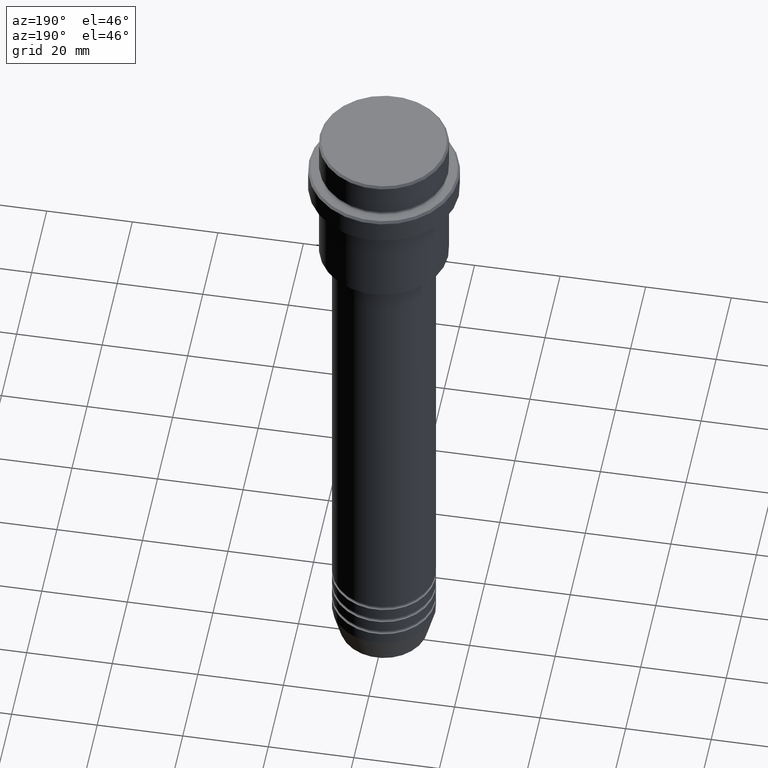
[diagram: clean part render]
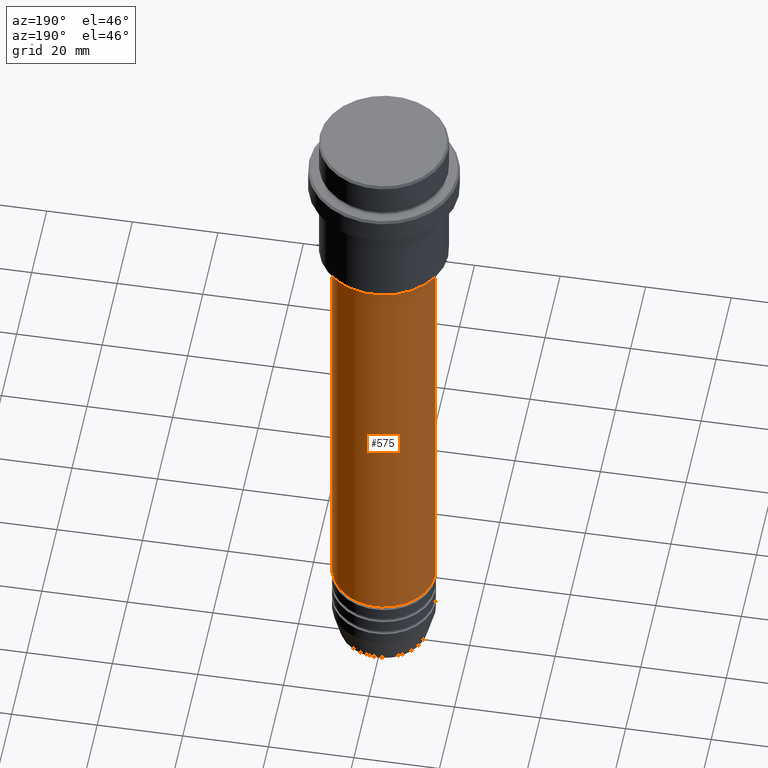
[diagram: same view with one face highlighted and labeled with its STEP entity id]
A machine part, auxiliary view. The second image highlights one B-rep face of the part: STEP entity #575.
In plain terms, the highlighted cylindrical surface (partial cylindrical patch) has radius 12 mm, axis along (-0, -0, 1).
Its self-contained STEP definition (entity closure, byte-faithful):
#4 = VERTEX_POINT ( 'NONE', #1037 ) ;
#33 = DIRECTION ( 'NONE',  ( -0.000000000000000000, -0.000000000000000000, 1.000000000000000000 ) ) ;
#55 = CARTESIAN_POINT ( 'NONE',  ( 0.000000000000000000, 0.000000000000000000, 0.000000000000000000 ) ) ;
#130 = AXIS2_PLACEMENT_3D ( 'NONE', #326, #419, #635 ) ;
#169 = FACE_OUTER_BOUND ( 'NONE', #1409, .T. ) ;
#295 = VERTEX_POINT ( 'NONE', #1391 ) ;
#326 = CARTESIAN_POINT ( 'NONE',  ( 0.000000000000000000, 0.000000000000000000, -141.9999999999999147 ) ) ;
#368 = CARTESIAN_POINT ( 'NONE',  ( 12.00000000000000000, 0.000000000000000000, 0.000000000000000000 ) ) ;
#392 = DIRECTION ( 'NONE',  ( -0.000000000000000000, -0.000000000000000000, 1.000000000000000000 ) ) ;
#412 = ORIENTED_EDGE ( 'NONE', *, *, #1329, .F. ) ;
#419 = DIRECTION ( 'NONE',  ( -0.000000000000000000, -0.000000000000000000, 1.000000000000000000 ) ) ;
#493 = LINE ( 'NONE', #368, #1093 ) ;
#540 = CIRCLE ( 'NONE', #1405, 11.99999999999999822 ) ;
#547 = EDGE_CURVE ( 'NONE', #295, #4, #540, .T. ) ;
#548 = LINE ( 'NONE', #1312, #872 ) ;
#575 = ADVANCED_FACE ( 'NONE', ( #169 ), #1052, .T. ) ;
#610 = CIRCLE ( 'NONE', #130, 12.00000000000000000 ) ;
#635 = DIRECTION ( 'NONE',  ( 1.000000000000000000, 0.000000000000000000, 0.000000000000000000 ) ) ;
#644 = EDGE_CURVE ( 'NONE', #1034, #926, #610, .T. ) ;
#758 = ORIENTED_EDGE ( 'NONE', *, *, #547, .F. ) ;
#759 = DIRECTION ( 'NONE',  ( -0.000000000000000000, -0.000000000000000000, 1.000000000000000000 ) ) ;
#854 = CARTESIAN_POINT ( 'NONE',  ( 12.00000000000000000, 0.000000000000000000, -141.9999999999999147 ) ) ;
#872 = VECTOR ( 'NONE', #759, 1000.000000000000000 ) ;
#926 = VERTEX_POINT ( 'NONE', #1354 ) ;
#947 = DIRECTION ( 'NONE',  ( -0.000000000000000000, -0.000000000000000000, 1.000000000000000000 ) ) ;
#1002 = ORIENTED_EDGE ( 'NONE', *, *, #644, .T. ) ;
#1034 = VERTEX_POINT ( 'NONE', #854 ) ;
#1037 = CARTESIAN_POINT ( 'NONE',  ( -11.99999999999999822, 1.469576158976823750E-15, -36.99999999999999289 ) ) ;
#1042 = CARTESIAN_POINT ( 'NONE',  ( 0.000000000000000000, 0.000000000000000000, -36.99999999999999289 ) ) ;
#1052 = CYLINDRICAL_SURFACE ( 'NONE', #1157, 12.00000000000000000 ) ;
#1093 = VECTOR ( 'NONE', #33, 1000.000000000000000 ) ;
#1157 = AXIS2_PLACEMENT_3D ( 'NONE', #55, #947, #1255 ) ;
#1175 = EDGE_CURVE ( 'NONE', #926, #4, #548, .T. ) ;
#1255 = DIRECTION ( 'NONE',  ( 1.000000000000000000, 0.000000000000000000, 0.000000000000000000 ) ) ;
#1261 = DIRECTION ( 'NONE',  ( 1.000000000000000000, 0.000000000000000000, 0.000000000000000000 ) ) ;
#1312 = CARTESIAN_POINT ( 'NONE',  ( -12.00000000000000000, 1.469576158976823947E-15, 0.000000000000000000 ) ) ;
#1329 = EDGE_CURVE ( 'NONE', #1034, #295, #493, .T. ) ;
#1354 = CARTESIAN_POINT ( 'NONE',  ( -12.00000000000000000, 1.469576158976823947E-15, -141.9999999999999147 ) ) ;
#1357 = ORIENTED_EDGE ( 'NONE', *, *, #1175, .T. ) ;
#1391 = CARTESIAN_POINT ( 'NONE',  ( 11.99999999999999822, 0.000000000000000000, -36.99999999999999289 ) ) ;
#1405 = AXIS2_PLACEMENT_3D ( 'NONE', #1042, #392, #1261 ) ;
#1409 = EDGE_LOOP ( 'NONE', ( #1002, #1357, #758, #412 ) ) ;